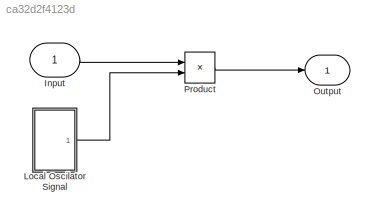
MODEL slx_ca32d2f4123d
KIND model
BLOCK [Inport] Input
  IconDisplay = Port number
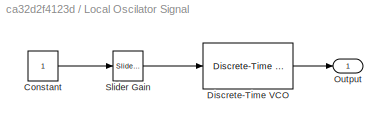
BLOCK [SubSystem] Local Oscilator Signal
  Ports = [0, 1]
  RequestExecContextInheritance = off
BLOCK [Constant] Local Oscilator Signal/Constant
BLOCK [Reference] Local Oscilator Signal/Discrete-Time VCO  REF=commsynccomp2/Discrete-Time
VCO
  Ac = 1
  Fc = 0
  Kc = 1000
  Ph = 0
  Ports = [1, 1]
  SourceBlock = commsynccomp2/Discrete-Time\nVCO
  SourceType = Discrete-Time VCO
  ts = 1/5000000
BLOCK [Outport] Local Oscilator Signal/Output
  IconDisplay = Port number
BLOCK [Reference] Local Oscilator Signal/Slider Gain  REF=simulink/Math
Operations/Slider
Gain
  Ports = [1, 1]
  SourceBlock = simulink/Math\nOperations/Slider\nGain
  SourceType = Slider Gain
  gain = 1257
  high = 2070
  low = 1015
BLOCK [Outport] Output
  IconDisplay = Port number
BLOCK [Product] Product
  InputSameDT = off
  OutDataTypeStr = Inherit: Inherit via internal rule
  Ports = [2, 1]
  RndMeth = Floor
  SaturateOnIntegerOverflow = off
LINE Input:1 -> Product:1
LINE Local Oscilator Signal/Constant:1 -> Local Oscilator Signal/Slider Gain:1
LINE Local Oscilator Signal/Discrete-Time VCO:1 -> Local Oscilator Signal/Output:1
LINE Local Oscilator Signal/Slider Gain:1 -> Local Oscilator Signal/Discrete-Time VCO:1
LINE Local Oscilator Signal:1 -> Product:2
LINE Product:1 -> Output:1
